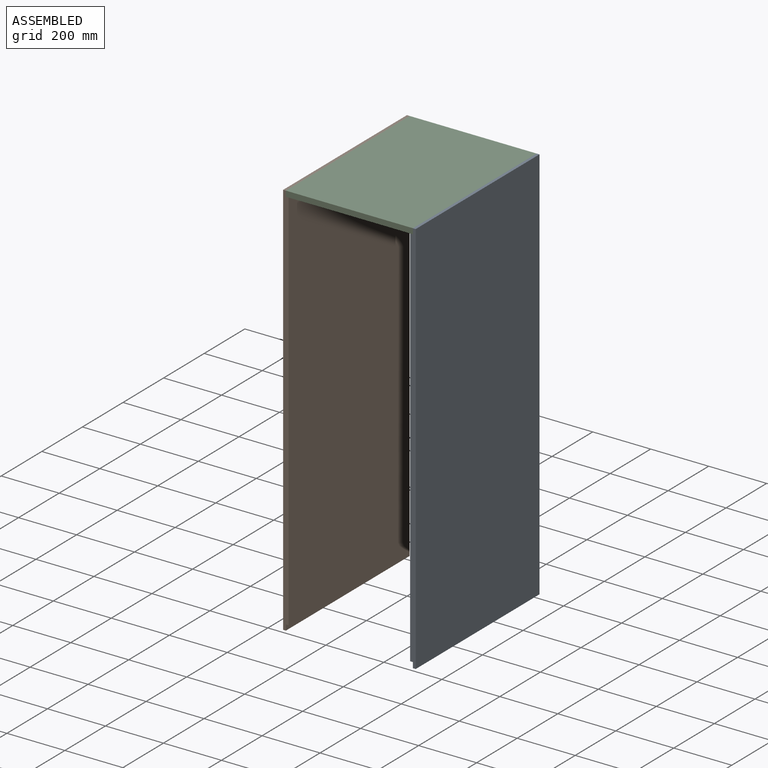
[diagram: assembled view]
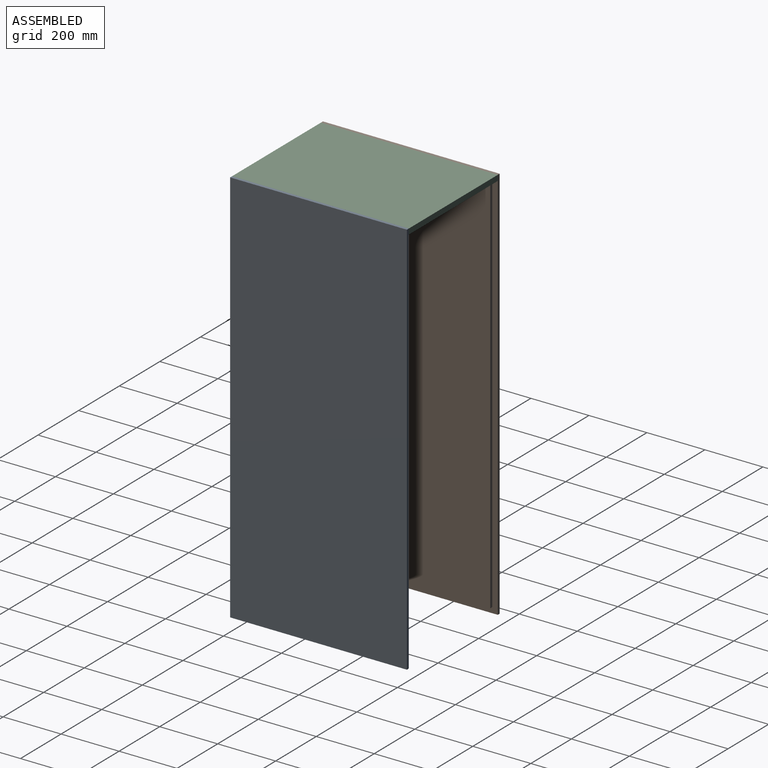
[diagram: assembled view, second angle]
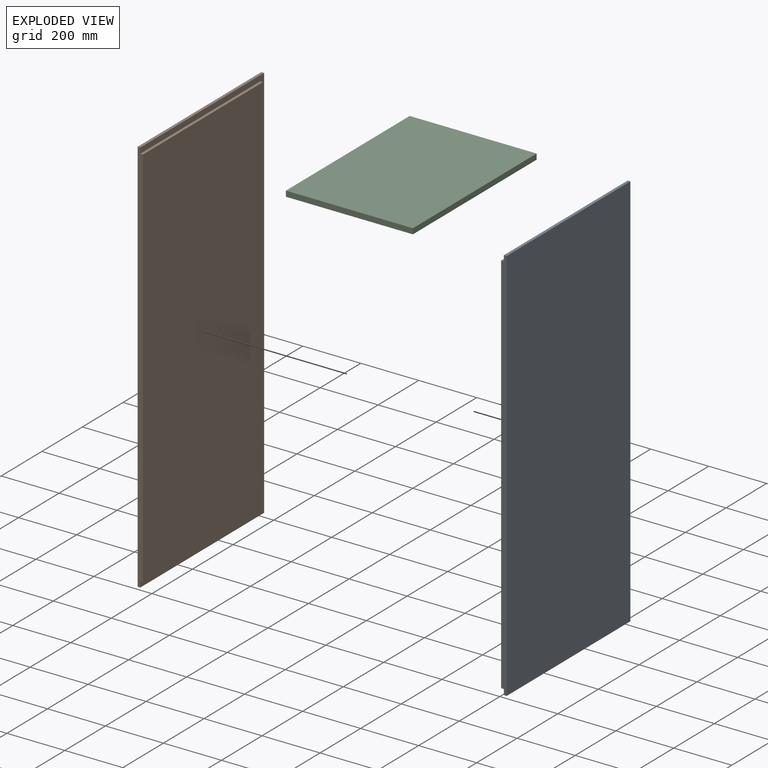
[diagram: exploded view]
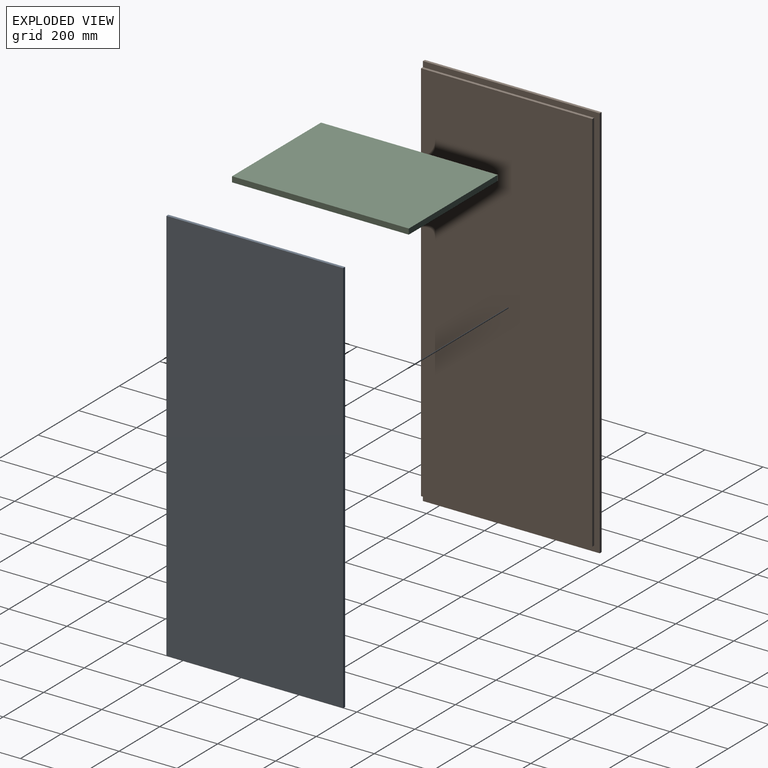
[diagram: exploded view, second angle]
ASSEMBLY  parts=3 mates=2
PART A: 10 faces, bbox 19.1x609.6x1371.6 mm
  f0: plane 1333.5x590.55mm, normal (-1,0,0), area 787498.4mm2, adj f1,f6,f7,f8
  f1: plane 1371.6x19.05mm, normal (0,-1,0), area 25766.1mm2, adj f0,f2,f4,f5,f6,f7,f9
  f2: plane 609.6x9.53mm, normal (0,0,-1), area 5806.4mm2, adj f1,f3,f5,f9
  f3: plane 1371.6x9.53mm, normal (0,1,0), area 13064.5mm2, adj f2,f4,f5,f9
  f4: plane 609.6x9.53mm, normal (0,0,1), area 5806.4mm2, adj f1,f3,f5,f9
  f5: plane 1371.6x609.6mm, normal (1,0,0), area 836127.4mm2, adj f1,f2,f3,f4
  f6: plane 590.55x9.53mm, normal (0,0,-1), area 5625mm2, adj f0,f1,f8,f9
  f7: plane 590.55x9.53mm, normal (0,0,1), area 5625mm2, adj f0,f1,f8,f9
  f8: plane 1333.5x9.53mm, normal (0,1,0), area 12701.6mm2, adj f0,f6,f7,f9
  f9: plane 1371.6x609.6mm, normal (-1,0,0), area 48628.9mm2, adj f1,f2,f3,f4,f6,f7,f8
PART B: 10 faces, bbox 19.1x609.6x1371.6 mm
  f0: plane 1333.5x590.55mm, normal (1,0,0), area 787498.4mm2, adj f1,f6,f7,f8
  f1: plane 1371.6x19.05mm, normal (0,-1,0), area 25766.1mm2, adj f0,f2,f4,f5,f6,f7,f9
  f2: plane 609.6x9.53mm, normal (0,0,-1), area 5806.4mm2, adj f1,f3,f5,f9
  f3: plane 1371.6x9.53mm, normal (0,1,0), area 13064.5mm2, adj f2,f4,f5,f9
  f4: plane 609.6x9.53mm, normal (0,0,1), area 5806.4mm2, adj f1,f3,f5,f9
  f5: plane 1371.6x609.6mm, normal (-1,0,0), area 836127.4mm2, adj f1,f2,f3,f4
  f6: plane 590.55x9.53mm, normal (0,0,-1), area 5625mm2, adj f0,f1,f8,f9
  f7: plane 590.55x9.53mm, normal (0,0,1), area 5625mm2, adj f0,f1,f8,f9
  f8: plane 1333.5x9.53mm, normal (0,1,0), area 12701.6mm2, adj f0,f6,f7,f9
  f9: plane 1371.6x609.6mm, normal (1,0,0), area 48628.9mm2, adj f1,f2,f3,f4,f6,f7,f8
PART C: 6 faces, bbox 438.2x609.6x19.1 mm
  f0: plane 609.6x19.05mm, normal (-1,0,0), area 11612.9mm2, adj f1,f3,f4,f5
  f1: plane 438.15x19.05mm, normal (0,-1,0), area 8346.8mm2, adj f0,f2,f4,f5
  f2: plane 609.6x19.05mm, normal (1,0,0), area 11612.9mm2, adj f1,f3,f4,f5
  f3: plane 438.15x19.05mm, normal (0,1,0), area 8346.8mm2, adj f0,f2,f4,f5
  f4: plane 609.6x438.15mm, normal (0,0,1), area 267096.2mm2, adj f0,f1,f2,f3
  f5: plane 609.6x438.15mm, normal (0,0,-1), area 267096.2mm2, adj f0,f1,f2,f3
PLACE A t=(2309.72,1030.6,369.19)mm
PLACE B t=(1890.62,1030.6,369.19)mm
PLACE C t=(2543.15,1257.23,1726.67)mm
MATE planar C.f2 <-> A.f9  axis (1,0,0) through (2319.25,973.07,1726.67)mm
MATE planar C.f0 <-> B.f9  axis (-1,0,0) through (1881.1,973.07,1726.67)mm
